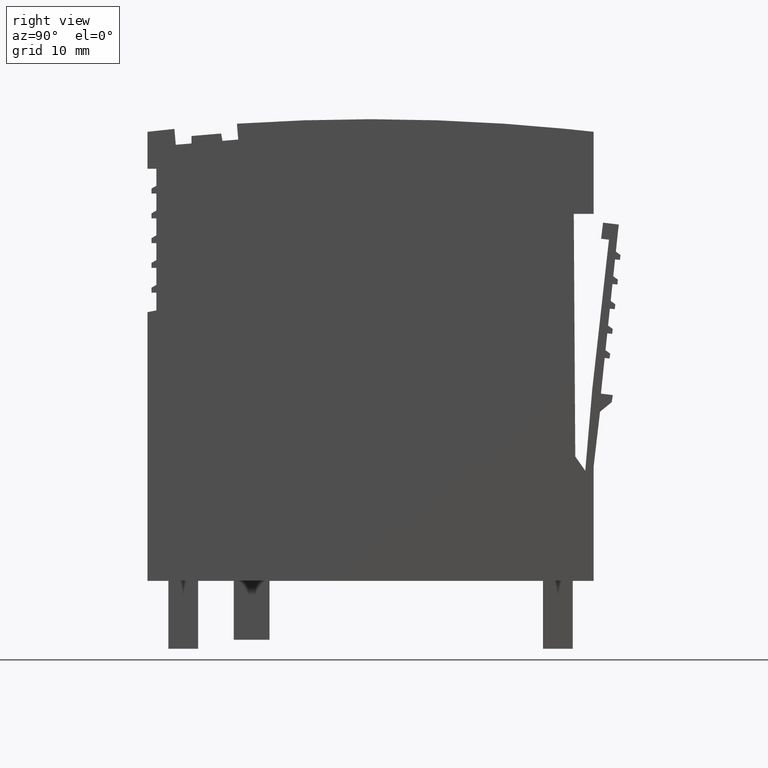
[diagram: clean part render]
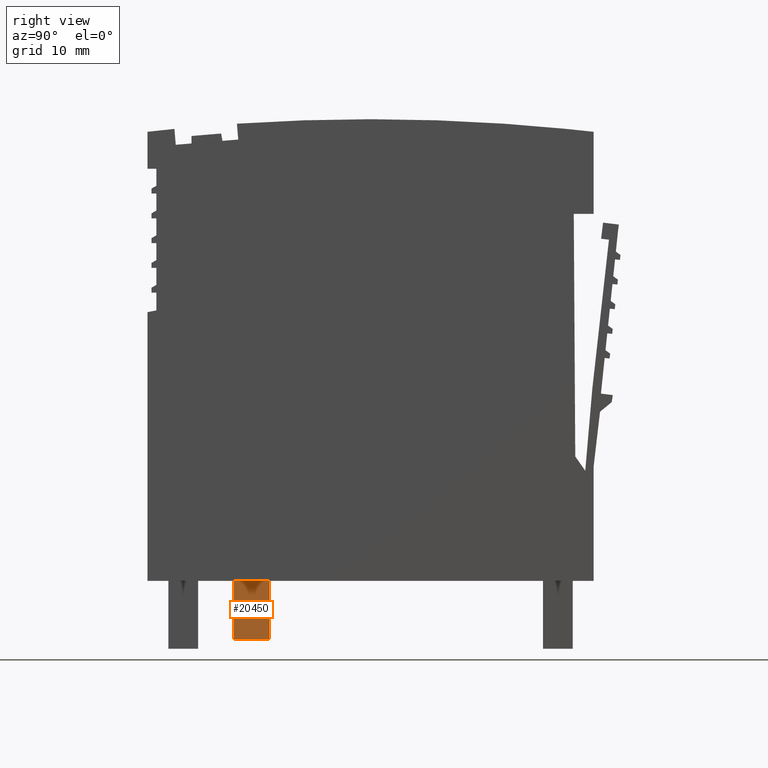
[diagram: same view with one face highlighted and labeled with its STEP entity id]
A machine part, right view. The second image highlights one B-rep face of the part: STEP entity #20450.
In plain terms, the highlighted planar face has unit normal (1, -0, 0).
Its self-contained STEP definition (entity closure, byte-faithful):
#19310=CARTESIAN_POINT('',(111.23636600137,55.3590821831597,
-11.3945269923349));
#19320=DIRECTION('',(1.,-7.69326545249514E-21,4.39608349722675E-11));
#19330=VECTOR('',#19320,1.);
#19340=LINE('',#19310,#19330);
#19350=CARTESIAN_POINT('',(154.376054936786,55.359082183167,
-11.3945269904384));
#19360=VERTEX_POINT('',#19350);
#19370=CARTESIAN_POINT('',(157.976054936906,55.359082183167,
-11.3945269902802));
#19380=VERTEX_POINT('',#19370);
#19390=EDGE_CURVE('',#19360,#19380,#19340,.T.);
#19930=CARTESIAN_POINT('',(154.376054936786,49.4267388854547,
-11.39452699096));
#19940=VERTEX_POINT('',#19930);
#19990=CARTESIAN_POINT('',(154.376054936786,7.37186692947567,
-11.3945269946576));
#20000=DIRECTION('',(-3.8651298030235E-21,-1.,-8.79221417989464E-11));
#20010=VECTOR('',#20000,1.);
#20020=LINE('',#19990,#20010);
#20030=EDGE_CURVE('',#19360,#19940,#20020,.T.);
#20220=CARTESIAN_POINT('',(154.376054936822,62.376738885461,
-11.3945269898214));
#20230=DIRECTION('',(4.39608349722675E-11,8.79221417989464E-11,-1.));
#20240=DIRECTION('',(3.7911356651729E-21,1.,8.79221417989464E-11));
#20250=AXIS2_PLACEMENT_3D('',#20220,#20230,#20240);
#20260=PLANE('',#20250);
#20270=ORIENTED_EDGE('',*,*,#20030,.F.);
#20280=CARTESIAN_POINT('',(96.2363660536202,49.4267388999221,
-11.3945269935159));
#20290=DIRECTION('',(1.,-2.41784148266064E-10,4.39608349510094E-11));
#20300=VECTOR('',#20290,1.);
#20310=LINE('',#20280,#20300);
#20320=CARTESIAN_POINT('',(157.976054936906,49.4267388854547,
-11.3945269908017));
#20330=VERTEX_POINT('',#20320);
#20340=EDGE_CURVE('',#19940,#20330,#20310,.T.);
#20350=ORIENTED_EDGE('',*,*,#20340,.F.);
#20360=CARTESIAN_POINT('',(157.976054936907,57.8018669294757,
-11.394526990439));
#20370=DIRECTION('',(3.79113591229122E-21,1.,8.79221417989464E-11));
#20380=VECTOR('',#20370,1.);
#20390=LINE('',#20360,#20380);
#20400=EDGE_CURVE('',#20330,#19380,#20390,.T.);
#20410=ORIENTED_EDGE('',*,*,#20400,.F.);
#20420=ORIENTED_EDGE('',*,*,#19390,.T.);
#20430=EDGE_LOOP('',(#20420,#20410,#20350,#20270));
#20440=FACE_OUTER_BOUND('',#20430,.T.);
#20450=ADVANCED_FACE('',(#20440),#20260,.T.);